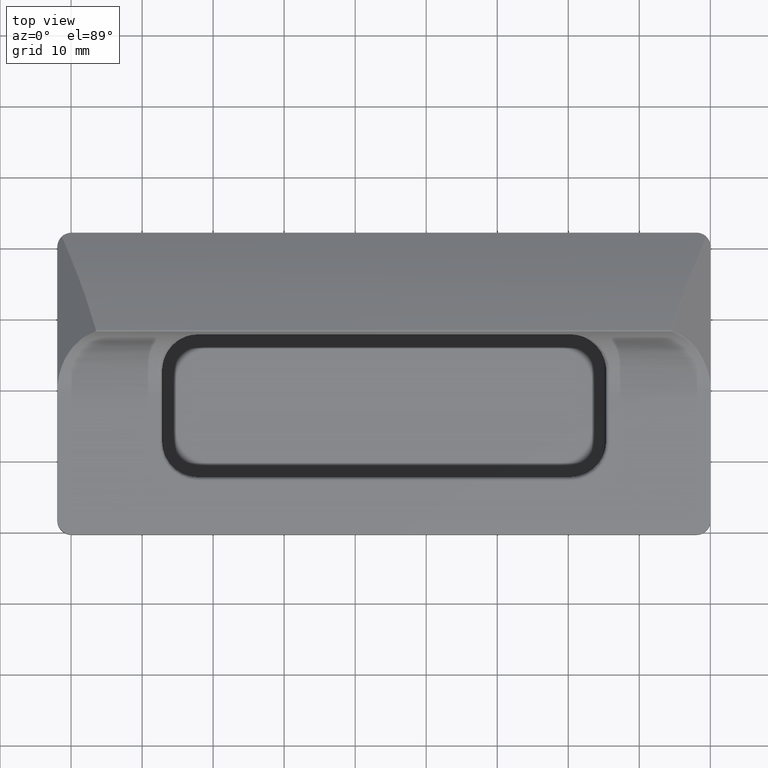
[diagram: clean part render]
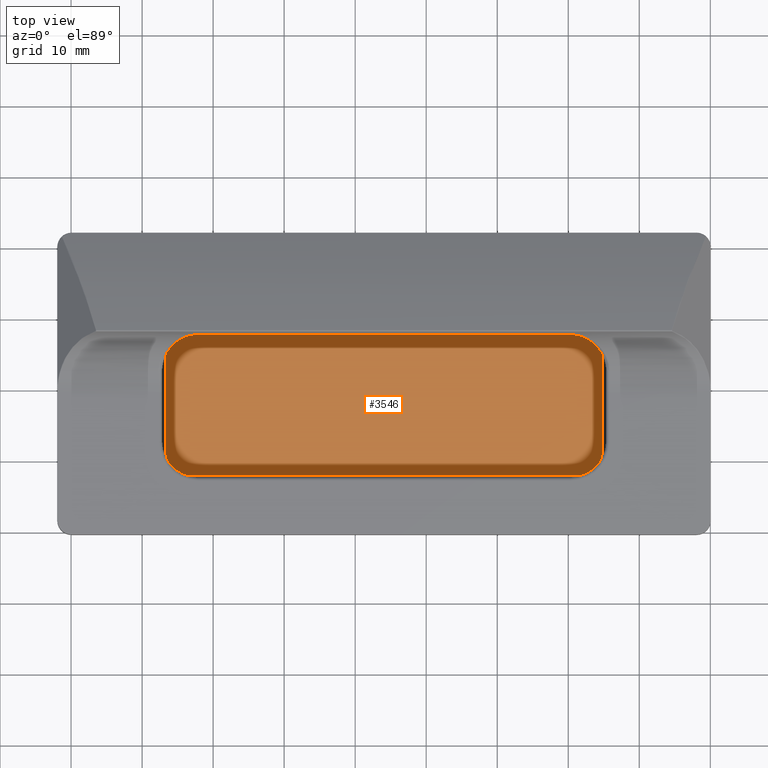
[diagram: same view with one face highlighted and labeled with its STEP entity id]
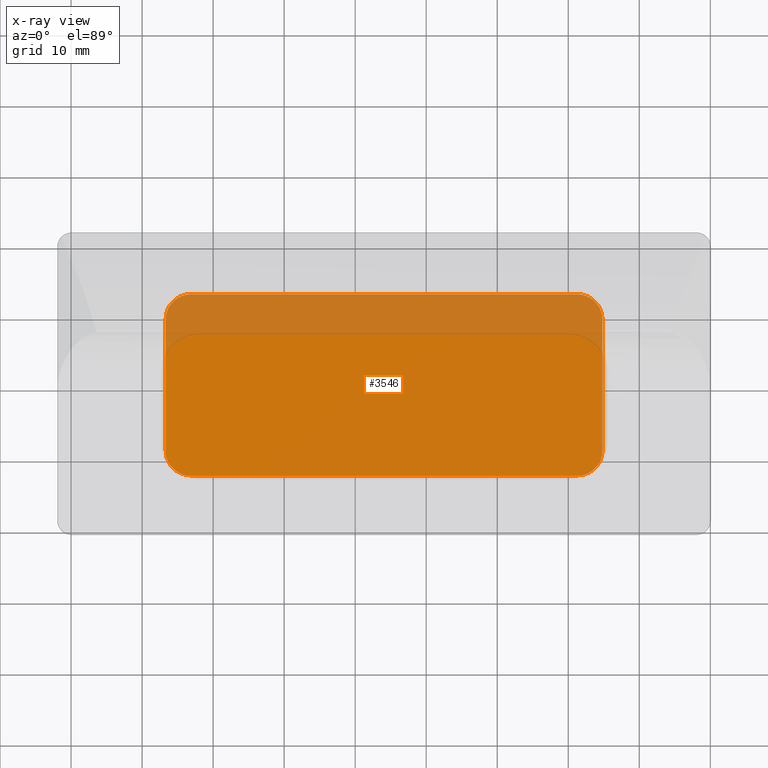
[diagram: x-ray of the same camera — body ghosted, the highlighted face saturated]
A machine part, top view. The second image highlights one B-rep face of the part: STEP entity #3546.
The next image is the same camera in x-ray: the body ghosted, the highlighted face saturated — about 23% of this face is hidden behind the body in this view.
In plain terms, the highlighted planar face has unit normal (-0, -0, -1).
Its self-contained STEP definition (entity closure, byte-faithful):
#103=PLANE('',#3877);
#245=LINE('',#6946,#498);
#248=LINE('',#6961,#501);
#250=LINE('',#6973,#503);
#252=LINE('',#6985,#505);
#498=VECTOR('',#4581,54.5);
#501=VECTOR('',#4598,18.5);
#503=VECTOR('',#4612,54.5);
#505=VECTOR('',#4626,18.5);
#884=FACE_OUTER_BOUND('',#1103,.T.);
#1103=EDGE_LOOP('',(#2939,#2940,#2941,#2942,#2943,#2944,#2945,#2946));
#1302=CIRCLE('',#3853,3.5);
#1306=CIRCLE('',#3859,3.5);
#1310=CIRCLE('',#3865,3.5);
#1313=CIRCLE('',#3870,3.5);
#1632=VERTEX_POINT('',#6943);
#1633=VERTEX_POINT('',#6945);
#1635=VERTEX_POINT('',#6951);
#1637=VERTEX_POINT('',#6957);
#1639=VERTEX_POINT('',#6963);
#1641=VERTEX_POINT('',#6969);
#1643=VERTEX_POINT('',#6975);
#1645=VERTEX_POINT('',#6981);
#2075=EDGE_CURVE('',#1632,#1633,#245,.T.);
#2080=EDGE_CURVE('',#1633,#1635,#1302,.T.);
#2083=EDGE_CURVE('',#1635,#1637,#248,.T.);
#2086=EDGE_CURVE('',#1637,#1639,#1306,.T.);
#2089=EDGE_CURVE('',#1639,#1641,#250,.T.);
#2092=EDGE_CURVE('',#1641,#1643,#1310,.T.);
#2095=EDGE_CURVE('',#1643,#1645,#252,.T.);
#2097=EDGE_CURVE('',#1645,#1632,#1313,.T.);
#2939=ORIENTED_EDGE('',*,*,#2075,.F.);
#2940=ORIENTED_EDGE('',*,*,#2097,.F.);
#2941=ORIENTED_EDGE('',*,*,#2095,.F.);
#2942=ORIENTED_EDGE('',*,*,#2092,.F.);
#2943=ORIENTED_EDGE('',*,*,#2089,.F.);
#2944=ORIENTED_EDGE('',*,*,#2086,.F.);
#2945=ORIENTED_EDGE('',*,*,#2083,.F.);
#2946=ORIENTED_EDGE('',*,*,#2080,.F.);
#3546=ADVANCED_FACE('',(#884),#103,.F.);
#3853=AXIS2_PLACEMENT_3D('',#6955,#4591,#4592);
#3859=AXIS2_PLACEMENT_3D('',#6967,#4605,#4606);
#3865=AXIS2_PLACEMENT_3D('',#6979,#4619,#4620);
#3870=AXIS2_PLACEMENT_3D('',#6988,#4631,#4632);
#3877=AXIS2_PLACEMENT_3D('',#7007,#4652,#4653);
#4581=DIRECTION('',(1.,0.,0.));
#4591=DIRECTION('center_axis',(0.,0.,-1.));
#4592=DIRECTION('ref_axis',(0.707106781186548,0.707106781186548,0.));
#4598=DIRECTION('',(0.,-1.,0.));
#4605=DIRECTION('center_axis',(0.,0.,-1.));
#4606=DIRECTION('ref_axis',(0.707106781186547,-0.707106781186548,0.));
#4612=DIRECTION('',(-1.,0.,0.));
#4619=DIRECTION('center_axis',(0.,0.,-1.));
#4620=DIRECTION('ref_axis',(-0.707106781186548,-0.707106781186548,0.));
#4626=DIRECTION('',(2.40048221540574E-16,1.,0.));
#4631=DIRECTION('center_axis',(0.,0.,-1.));
#4632=DIRECTION('ref_axis',(-0.707106781186548,0.707106781186548,0.));
#4652=DIRECTION('center_axis',(0.,0.,-1.));
#4653=DIRECTION('ref_axis',(1.,0.,0.));
#6943=CARTESIAN_POINT('',(-27.25,12.75,-6.1));
#6945=CARTESIAN_POINT('',(27.25,12.75,-6.1));
#6946=CARTESIAN_POINT('',(13.625,12.75,-6.1));
#6951=CARTESIAN_POINT('',(30.75,9.25,-6.1));
#6955=CARTESIAN_POINT('Origin',(27.25,9.25,-6.1));
#6957=CARTESIAN_POINT('',(30.75,-9.25,-6.1));
#6961=CARTESIAN_POINT('',(30.75,-4.625,-6.1));
#6963=CARTESIAN_POINT('',(27.25,-12.75,-6.1));
#6967=CARTESIAN_POINT('Origin',(27.25,-9.25,-6.1));
#6969=CARTESIAN_POINT('',(-27.25,-12.75,-6.1));
#6973=CARTESIAN_POINT('',(-13.625,-12.75,-6.1));
#6975=CARTESIAN_POINT('',(-30.75,-9.25,-6.1));
#6979=CARTESIAN_POINT('Origin',(-27.25,-9.25,-6.1));
#6981=CARTESIAN_POINT('',(-30.75,9.25,-6.1));
#6985=CARTESIAN_POINT('',(-30.75,4.625,-6.1));
#6988=CARTESIAN_POINT('Origin',(-27.25,9.25,-6.1));
#7007=CARTESIAN_POINT('Origin',(0.,-2.22044604925031E-15,-6.1));